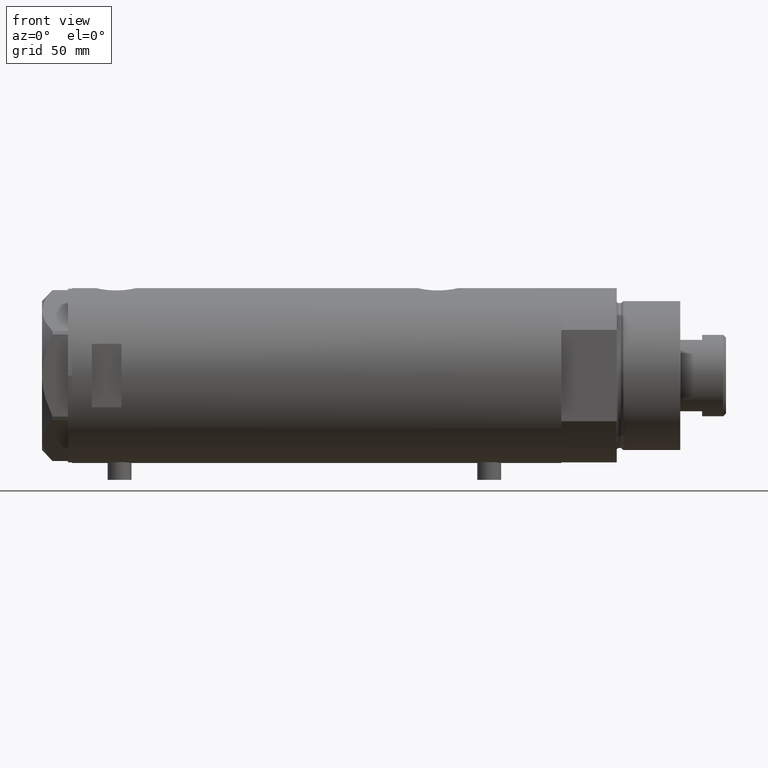
[diagram: clean part render]
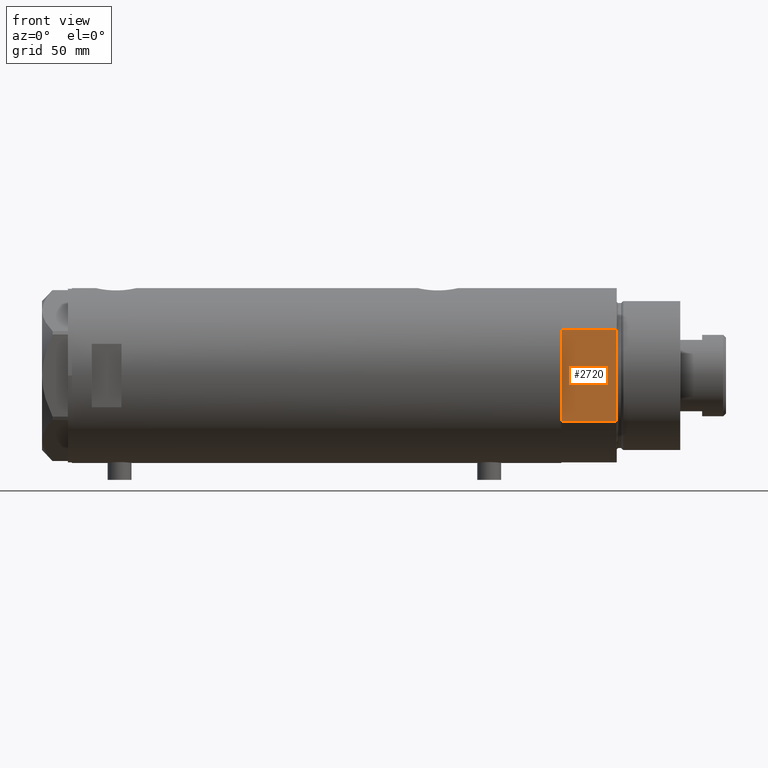
[diagram: same view with one face highlighted and labeled with its STEP entity id]
A machine part, front view. The second image highlights one B-rep face of the part: STEP entity #2720.
In plain terms, the highlighted planar face has unit normal (-0, 1, 0).
Its self-contained STEP definition (entity closure, byte-faithful):
#36 = CARTESIAN_POINT ( 'NONE',  ( 23.01629857296780557, -37.50000000000000000, 0.000000000000000000 ) ) ;
#44 = ORIENTED_EDGE ( 'NONE', *, *, #3093, .F. ) ;
#57 = DIRECTION ( 'NONE',  ( 0.000000000000000000, -0.000000000000000000, 1.000000000000000000 ) ) ;
#333 = CARTESIAN_POINT ( 'NONE',  ( -23.01629857296780557, -37.50000000000000000, 0.000000000000000000 ) ) ;
#357 = ORIENTED_EDGE ( 'NONE', *, *, #1672, .T. ) ;
#611 = VERTEX_POINT ( 'NONE', #3990 ) ;
#751 = CARTESIAN_POINT ( 'NONE',  ( -23.01629857296780557, -37.50000000000000000, 0.000000000000000000 ) ) ;
#775 = EDGE_CURVE ( 'NONE', #2733, #611, #4089, .T. ) ;
#931 = CARTESIAN_POINT ( 'NONE',  ( -23.01629857296780557, -37.50000000000000000, 0.000000000000000000 ) ) ;
#1064 = LINE ( 'NONE', #3172, #2449 ) ;
#1096 = VECTOR ( 'NONE', #1306, 1000.000000000000000 ) ;
#1302 = EDGE_LOOP ( 'NONE', ( #1938, #3155, #44, #1800, #3488, #3647, #357 ) ) ;
#1306 = DIRECTION ( 'NONE',  ( -1.000000000000000000, -0.000000000000000000, -0.000000000000000000 ) ) ;
#1308 = LINE ( 'NONE', #1583, #1406 ) ;
#1373 = LINE ( 'NONE', #4485, #1927 ) ;
#1406 = VECTOR ( 'NONE', #2674, 1000.000000000000000 ) ;
#1452 = DIRECTION ( 'NONE',  ( -0.000000000000000000, -0.000000000000000000, 1.000000000000000000 ) ) ;
#1467 = LINE ( 'NONE', #4054, #3465 ) ;
#1553 = DIRECTION ( 'NONE',  ( -1.000000000000000000, -0.000000000000000000, -0.000000000000000000 ) ) ;
#1583 = CARTESIAN_POINT ( 'NONE',  ( -23.01629857296780557, -37.50000000000000000, 27.89999999999999858 ) ) ;
#1672 = EDGE_CURVE ( 'NONE', #2733, #3821, #3210, .T. ) ;
#1701 = EDGE_CURVE ( 'NONE', #2534, #2394, #3064, .T. ) ;
#1800 = ORIENTED_EDGE ( 'NONE', *, *, #1701, .F. ) ;
#1875 = CARTESIAN_POINT ( 'NONE',  ( -13.91941090707505957, -37.50000000000000000, 0.000000000000000000 ) ) ;
#1927 = VECTOR ( 'NONE', #2798, 1000.000000000000000 ) ;
#1938 = ORIENTED_EDGE ( 'NONE', *, *, #2921, .T. ) ;
#2053 = CARTESIAN_POINT ( 'NONE',  ( -23.01629857296780557, -37.50000000000000000, 0.000000000000000000 ) ) ;
#2060 = CARTESIAN_POINT ( 'NONE',  ( 23.01629857296780557, -37.50000000000000000, 27.89999999999999858 ) ) ;
#2066 = EDGE_CURVE ( 'NONE', #3321, #2093, #1064, .T. ) ;
#2093 = VERTEX_POINT ( 'NONE', #3831 ) ;
#2194 = FACE_OUTER_BOUND ( 'NONE', #1302, .T. ) ;
#2234 = EDGE_CURVE ( 'NONE', #611, #2534, #1467, .T. ) ;
#2365 = DIRECTION ( 'NONE',  ( -1.000000000000000000, -0.000000000000000000, -0.000000000000000000 ) ) ;
#2394 = VERTEX_POINT ( 'NONE', #333 ) ;
#2449 = VECTOR ( 'NONE', #3105, 1000.000000000000000 ) ;
#2532 = DIRECTION ( 'NONE',  ( -0.000000000000000000, 1.000000000000000000, 0.000000000000000000 ) ) ;
#2534 = VERTEX_POINT ( 'NONE', #1875 ) ;
#2674 = DIRECTION ( 'NONE',  ( -1.000000000000000000, -0.000000000000000000, -0.000000000000000000 ) ) ;
#2720 = ADVANCED_FACE ( 'NONE', ( #2194 ), #3306, .F. ) ;
#2733 = VERTEX_POINT ( 'NONE', #3912 ) ;
#2798 = DIRECTION ( 'NONE',  ( -0.000000000000000000, -0.000000000000000000, 1.000000000000000000 ) ) ;
#2921 = EDGE_CURVE ( 'NONE', #3821, #3321, #1308, .T. ) ;
#3064 = LINE ( 'NONE', #2053, #1096 ) ;
#3093 = EDGE_CURVE ( 'NONE', #2394, #2093, #1373, .T. ) ;
#3105 = DIRECTION ( 'NONE',  ( -1.000000000000000000, -0.000000000000000000, -0.000000000000000000 ) ) ;
#3155 = ORIENTED_EDGE ( 'NONE', *, *, #2066, .T. ) ;
#3157 = VECTOR ( 'NONE', #2365, 1000.000000000000000 ) ;
#3171 = AXIS2_PLACEMENT_3D ( 'NONE', #751, #2532, #57 ) ;
#3172 = CARTESIAN_POINT ( 'NONE',  ( -23.01629857296780557, -37.50000000000000000, 27.89999999999999858 ) ) ;
#3210 = LINE ( 'NONE', #36, #3895 ) ;
#3306 = PLANE ( 'NONE',  #3171 ) ;
#3321 = VERTEX_POINT ( 'NONE', #4479 ) ;
#3465 = VECTOR ( 'NONE', #1553, 1000.000000000000000 ) ;
#3488 = ORIENTED_EDGE ( 'NONE', *, *, #2234, .F. ) ;
#3647 = ORIENTED_EDGE ( 'NONE', *, *, #775, .F. ) ;
#3821 = VERTEX_POINT ( 'NONE', #2060 ) ;
#3831 = CARTESIAN_POINT ( 'NONE',  ( -23.01629857296780557, -37.50000000000000000, 27.89999999999999858 ) ) ;
#3895 = VECTOR ( 'NONE', #1452, 1000.000000000000000 ) ;
#3912 = CARTESIAN_POINT ( 'NONE',  ( 23.01629857296780557, -37.50000000000000000, 0.000000000000000000 ) ) ;
#3990 = CARTESIAN_POINT ( 'NONE',  ( 13.91941090707505957, -37.50000000000000000, 0.000000000000000000 ) ) ;
#4054 = CARTESIAN_POINT ( 'NONE',  ( -23.01629857296780557, -37.50000000000000000, 0.000000000000000000 ) ) ;
#4089 = LINE ( 'NONE', #931, #3157 ) ;
#4479 = CARTESIAN_POINT ( 'NONE',  ( 0.000000000000000000, -37.50000000000000000, 27.89999999999999858 ) ) ;
#4485 = CARTESIAN_POINT ( 'NONE',  ( -23.01629857296780557, -37.50000000000000000, 0.000000000000000000 ) ) ;